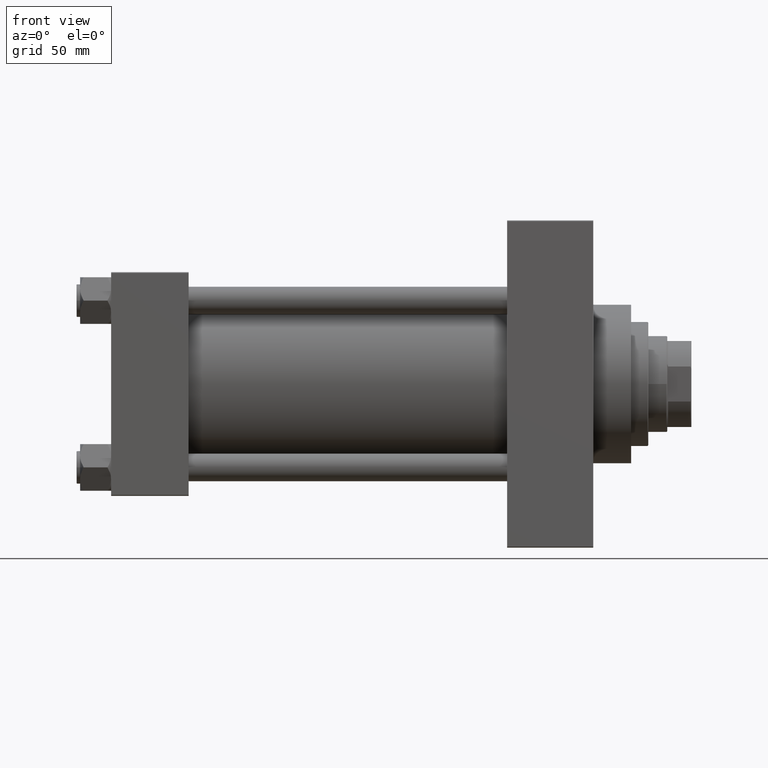
[diagram: clean part render]
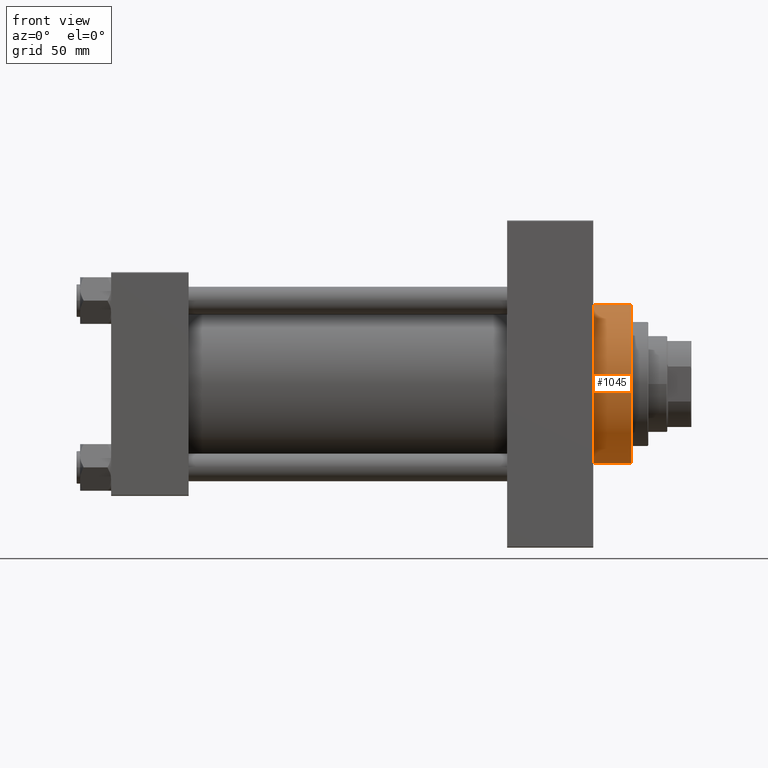
[diagram: same view with one face highlighted and labeled with its STEP entity id]
A machine part, front view. The second image highlights one B-rep face of the part: STEP entity #1045.
In plain terms, the highlighted cylindrical surface (partial cylindrical patch) has radius 46 mm, axis along (-1, -0, -0).
Its self-contained STEP definition (entity closure, byte-faithful):
#935 = AXIS2_PLACEMENT_3D ( 'NONE', #35468, #39315, #35004 ) ;
#1045 = ADVANCED_FACE ( 'NONE', ( #32533 ), #47469, .T. ) ;
#1852 = ORIENTED_EDGE ( 'NONE', *, *, #27785, .F. ) ;
#2081 = EDGE_LOOP ( 'NONE', ( #1852, #42285, #32995, #26304 ) ) ;
#3855 = VECTOR ( 'NONE', #10417, 1000.000000000000000 ) ;
#5936 = AXIS2_PLACEMENT_3D ( 'NONE', #22137, #10549, #39994 ) ;
#9708 = DIRECTION ( 'NONE',  ( -1.000000000000000000, -0.000000000000000000, -0.000000000000000000 ) ) ;
#10178 = DIRECTION ( 'NONE',  ( 0.000000000000000000, 0.000000000000000000, -1.000000000000000000 ) ) ;
#10417 = DIRECTION ( 'NONE',  ( -1.000000000000000000, -0.000000000000000000, -0.000000000000000000 ) ) ;
#10549 = DIRECTION ( 'NONE',  ( -1.000000000000000000, -0.000000000000000000, -0.000000000000000000 ) ) ;
#11120 = LINE ( 'NONE', #36235, #3855 ) ;
#11618 = VECTOR ( 'NONE', #9708, 1000.000000000000000 ) ;
#14198 = VERTEX_POINT ( 'NONE', #21411 ) ;
#17422 = CARTESIAN_POINT ( 'NONE',  ( 302.0000000000000000, 0.000000000000000000, 0.000000000000000000 ) ) ;
#18493 = VERTEX_POINT ( 'NONE', #22519 ) ;
#19406 = AXIS2_PLACEMENT_3D ( 'NONE', #17422, #39377, #10178 ) ;
#19561 = EDGE_CURVE ( 'NONE', #24475, #18493, #25577, .T. ) ;
#19862 = EDGE_CURVE ( 'NONE', #29998, #14198, #42502, .T. ) ;
#21062 = LINE ( 'NONE', #32395, #11618 ) ;
#21411 = CARTESIAN_POINT ( 'NONE',  ( 279.9999999999999432, 5.633375276077824704E-15, -46.00000000000000000 ) ) ;
#22137 = CARTESIAN_POINT ( 'NONE',  ( 302.0000000000000000, 0.000000000000000000, 0.000000000000000000 ) ) ;
#22519 = CARTESIAN_POINT ( 'NONE',  ( 302.0000000000000000, 5.633375276077824704E-15, -46.00000000000000000 ) ) ;
#24475 = VERTEX_POINT ( 'NONE', #45347 ) ;
#25577 = CIRCLE ( 'NONE', #19406, 46.00000000000000000 ) ;
#26304 = ORIENTED_EDGE ( 'NONE', *, *, #19862, .T. ) ;
#26885 = EDGE_CURVE ( 'NONE', #24475, #29998, #11120, .T. ) ;
#27785 = EDGE_CURVE ( 'NONE', #18493, #14198, #21062, .T. ) ;
#29998 = VERTEX_POINT ( 'NONE', #33230 ) ;
#32395 = CARTESIAN_POINT ( 'NONE',  ( 302.0000000000000000, 5.633375276077824704E-15, -46.00000000000000000 ) ) ;
#32533 = FACE_OUTER_BOUND ( 'NONE', #2081, .T. ) ;
#32995 = ORIENTED_EDGE ( 'NONE', *, *, #26885, .T. ) ;
#33230 = CARTESIAN_POINT ( 'NONE',  ( 279.9999999999999432, 0.000000000000000000, 46.00000000000000000 ) ) ;
#35004 = DIRECTION ( 'NONE',  ( 0.000000000000000000, 0.000000000000000000, -1.000000000000000000 ) ) ;
#35468 = CARTESIAN_POINT ( 'NONE',  ( 279.9999999999999432, 0.000000000000000000, 0.000000000000000000 ) ) ;
#36235 = CARTESIAN_POINT ( 'NONE',  ( 302.0000000000000000, 0.000000000000000000, 46.00000000000000000 ) ) ;
#39315 = DIRECTION ( 'NONE',  ( 1.000000000000000000, 0.000000000000000000, 0.000000000000000000 ) ) ;
#39377 = DIRECTION ( 'NONE',  ( 1.000000000000000000, 0.000000000000000000, 0.000000000000000000 ) ) ;
#39994 = DIRECTION ( 'NONE',  ( 0.000000000000000000, 0.000000000000000000, 1.000000000000000000 ) ) ;
#42285 = ORIENTED_EDGE ( 'NONE', *, *, #19561, .F. ) ;
#42502 = CIRCLE ( 'NONE', #935, 46.00000000000000000 ) ;
#45347 = CARTESIAN_POINT ( 'NONE',  ( 302.0000000000000000, 0.000000000000000000, 46.00000000000000000 ) ) ;
#47469 = CYLINDRICAL_SURFACE ( 'NONE', #5936, 46.00000000000000000 ) ;